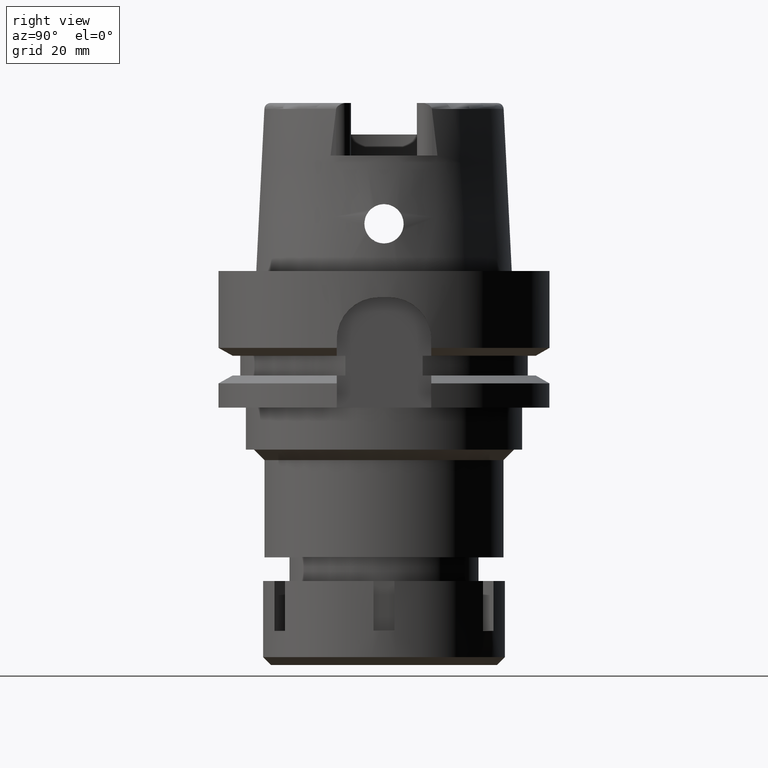
[diagram: clean part render]
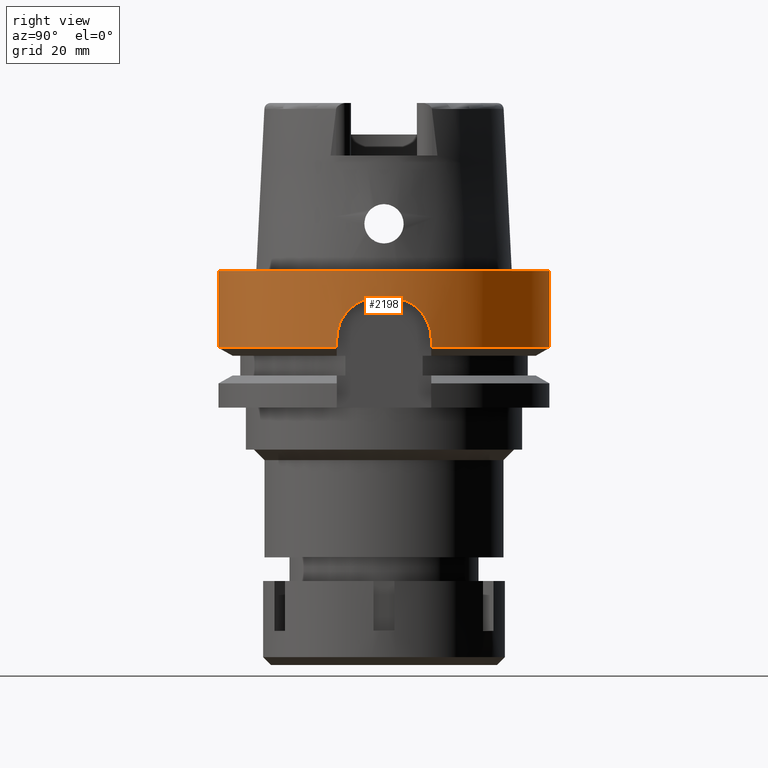
[diagram: same view with one face highlighted and labeled with its STEP entity id]
A machine part, right view. The second image highlights one B-rep face of the part: STEP entity #2198.
In plain terms, the highlighted cylindrical surface (partial cylindrical patch) has radius 31.5 mm, axis along (0, 0, 1).
Its self-contained STEP definition (entity closure, byte-faithful):
#54 = CARTESIAN_POINT ( 'NONE',  ( 30.51702131810234064, -7.809603249671924985, -8.791304907437334393 ) ) ;
#81 = CARTESIAN_POINT ( 'NONE',  ( 30.36389475051907283, -8.383544545715203355, -9.920471320936059101 ) ) ;
#107 = CARTESIAN_POINT ( 'NONE',  ( 30.41590887709456581, -8.193240148041644133, -9.496691640511109256 ) ) ;
#121 = CARTESIAN_POINT ( 'NONE',  ( 31.10351900522985957, 4.987045468982477914, -6.059272024111327148 ) ) ;
#134 = CARTESIAN_POINT ( 'NONE',  ( 30.39415701621588539, -8.273302781521842064, -9.667878307958662987 ) ) ;
#146 = EDGE_CURVE ( 'NONE', #2795, #435, #564, .T. ) ;
#151 = CARTESIAN_POINT ( 'NONE',  ( 31.19801897404636648, 4.351427353639776285, -5.735577851712073461 ) ) ;
#170 = CARTESIAN_POINT ( 'NONE',  ( 30.69497368320052288, -7.078897646005479771, -7.792717479204596565 ) ) ;
#183 = CARTESIAN_POINT ( 'NONE',  ( 30.38226979499732749, 8.317184729392344877, -9.757205934844604300 ) ) ;
#248 = CARTESIAN_POINT ( 'NONE',  ( 31.01660063787043953, 5.497298744674538717, -6.383775614452099845 ) ) ;
#330 = DIRECTION ( 'NONE',  ( 0.9583148474999051425, 0.2857142857143015191, 0.0000000000000000000 ) ) ;
#370 = CARTESIAN_POINT ( 'NONE',  ( 0.0000000000000000000, 31.50000000000000000, -1.042129345780999972E-13 ) ) ;
#371 = CARTESIAN_POINT ( 'NONE',  ( 31.48412298285999711, -1.000000000000000000, -5.000000000000000000 ) ) ;
#400 = CARTESIAN_POINT ( 'NONE',  ( 31.29498284434387756, -3.590644359524675089, -5.428944240270606514 ) ) ;
#435 = VERTEX_POINT ( 'NONE', #5395 ) ;
#521 = CARTESIAN_POINT ( 'NONE',  ( 31.06444629745790920, -5.220631158509295489, -6.203290350516115659 ) ) ;
#552 = CARTESIAN_POINT ( 'NONE',  ( 30.89620921175197665, -6.137412486659483690, -6.865390673085549622 ) ) ;
#555 = CIRCLE ( 'NONE', #1361, 31.49999999999999645 ) ;
#564 = LINE ( 'NONE', #2489, #5617 ) ;
#583 = CARTESIAN_POINT ( 'NONE',  ( 30.79357681694752813, -6.633677784657264098, -7.320051183288925678 ) ) ;
#593 = CARTESIAN_POINT ( 'NONE',  ( 30.74021165735640082, 6.877327897431877446, -7.571599291362645978 ) ) ;
#608 = CARTESIAN_POINT ( 'NONE',  ( 30.73952974355442080, -6.883893703069639436, -7.569694555210800146 ) ) ;
#629 = AXIS2_PLACEMENT_3D ( 'NONE', #796, #3765, #2245 ) ;
#635 = CIRCLE ( 'NONE', #5796, 31.50000000000000000 ) ;
#653 = CARTESIAN_POINT ( 'NONE',  ( 30.31073196050320462, 8.574603157634673067, -10.41989472781736659 ) ) ;
#687 = CARTESIAN_POINT ( 'NONE',  ( 30.95356917977947830, 5.840594664962170945, -6.629294821352991640 ) ) ;
#715 = CARTESIAN_POINT ( 'NONE',  ( 31.01215638590405632, 5.522259670439633616, -6.400779541551810503 ) ) ;
#758 = ORIENTED_EDGE ( 'NONE', *, *, #1532, .F. ) ;
#796 = CARTESIAN_POINT ( 'NONE',  ( 0.0000000000000000000, 0.0000000000000000000, -71.95000000000000284 ) ) ;
#820 = CARTESIAN_POINT ( 'NONE',  ( 31.23338604667608109, 4.089706211302964967, -5.620720255765226270 ) ) ;
#839 = CARTESIAN_POINT ( 'NONE',  ( 31.46862929428667499, -1.487805196524014661, -4.999999999999999112 ) ) ;
#850 = VECTOR ( 'NONE', #4786, 1000.000000000000000 ) ;
#995 = CARTESIAN_POINT ( 'NONE',  ( 30.63683066884467365, -7.324908374289424096, -8.099721332685088981 ) ) ;
#1021 = CARTESIAN_POINT ( 'NONE',  ( 31.18046083519910638, -4.480996307724982586, -5.792206243718687197 ) ) ;
#1049 = CARTESIAN_POINT ( 'NONE',  ( 31.24422726887665647, -4.006013280351468531, -5.586231854428084453 ) ) ;
#1081 = CARTESIAN_POINT ( 'NONE',  ( 30.85909880326832067, -6.321181662585879657, -7.025752317090677046 ) ) ;
#1092 = CARTESIAN_POINT ( 'NONE',  ( 30.57875992455571179, 7.563158154240367637, -8.421355729161382087 ) ) ;
#1106 = CARTESIAN_POINT ( 'NONE',  ( 30.80271848455124228, -6.591097070910298505, -7.278057713420767350 ) ) ;
#1125 = CARTESIAN_POINT ( 'NONE',  ( 30.41091297280572547, 8.212614273435303147, -9.529084935421849423 ) ) ;
#1161 = CARTESIAN_POINT ( 'NONE',  ( 30.78148409646215811, 6.689563132414347635, -7.376041391300625527 ) ) ;
#1193 = CARTESIAN_POINT ( 'NONE',  ( 30.55097295826762505, 7.673859706393864499, -8.588695640995739566 ) ) ;
#1303 = ORIENTED_EDGE ( 'NONE', *, *, #2155, .F. ) ;
#1361 = AXIS2_PLACEMENT_3D ( 'NONE', #2189, #4130, #330 ) ;
#1497 = CARTESIAN_POINT ( 'NONE',  ( 31.03248419704792127, -5.406936118259175750, -6.323244762925324558 ) ) ;
#1524 = CARTESIAN_POINT ( 'NONE',  ( 31.21214485125329574, -4.254475600982952521, -5.688145897417157038 ) ) ;
#1532 = EDGE_CURVE ( 'NONE', #435, #5927, #5894, .T. ) ;
#1556 = CARTESIAN_POINT ( 'NONE',  ( 30.18691769624998500, -8.999999999999998224, -12.01186829125632549 ) ) ;
#1571 = CARTESIAN_POINT ( 'NONE',  ( 30.47652907464237160, 7.965013030171157027, -9.062045400748701240 ) ) ;
#1600 = CARTESIAN_POINT ( 'NONE',  ( 31.22893199102224315, 4.123619458024327500, -5.634989324774632102 ) ) ;
#1629 = CARTESIAN_POINT ( 'NONE',  ( 30.54275586037433854, 7.706530796246862991, -8.638463306916211337 ) ) ;
#1664 = CARTESIAN_POINT ( 'NONE',  ( 30.97075242115173310, 5.748917096448772135, -6.561274545095370669 ) ) ;
#1696 = CARTESIAN_POINT ( 'NONE',  ( 30.76102064053208807, 6.783202762953602694, -7.472132158813488800 ) ) ;
#1737 = CARTESIAN_POINT ( 'NONE',  ( 30.18691769625000276, -9.000000000000000000, -13.00000000000000000 ) ) ;
#1764 = CARTESIAN_POINT ( 'NONE',  ( 31.23410034302229477, 4.084247727923102644, -5.618435648017858774 ) ) ;
#1798 = CARTESIAN_POINT ( 'NONE',  ( 31.43987018167979031, 2.003457346806868156, -5.045754772101198604 ) ) ;
#1804 = FACE_OUTER_BOUND ( 'NONE', #2180, .T. ) ;
#1860 = CARTESIAN_POINT ( 'NONE',  ( 31.48412298285999711, 1.000000000000000000, -5.000000000000000000 ) ) ;
#1878 = ORIENTED_EDGE ( 'NONE', *, *, #3974, .F. ) ;
#1961 = VERTEX_POINT ( 'NONE', #2671 ) ;
#1969 = CARTESIAN_POINT ( 'NONE',  ( 30.18691748922999807, 9.000000694375000165, -14.62249532487000003 ) ) ;
#1970 = CARTESIAN_POINT ( 'NONE',  ( 31.25435775326689836, -3.926300973150983253, -5.554274822752600649 ) ) ;
#1994 = CARTESIAN_POINT ( 'NONE',  ( 0.0000000000000000000, 0.0000000000000000000, -5.000000000000000000 ) ) ;
#1998 = CARTESIAN_POINT ( 'NONE',  ( 30.36253540610416479, -8.388468589249711727, -9.932292884648544984 ) ) ;
#2027 = CARTESIAN_POINT ( 'NONE',  ( 30.55793727350530276, -7.646078201515455142, -8.546948798749085086 ) ) ;
#2043 = CARTESIAN_POINT ( 'NONE',  ( 30.33325373079298615, 8.494007686403834967, -10.19860245585967107 ) ) ;
#2058 = CARTESIAN_POINT ( 'NONE',  ( 30.84611464479288756, -6.384576231397004697, -7.082713215559180320 ) ) ;
#2075 = CARTESIAN_POINT ( 'NONE',  ( 31.20965332894700595, 4.267577075393123920, -5.697307926940550438 ) ) ;
#2104 = CARTESIAN_POINT ( 'NONE',  ( 30.61169289301800589, 7.430571089701370369, -8.233868730760024235 ) ) ;
#2135 = CARTESIAN_POINT ( 'NONE',  ( 30.66945258665633034, 7.187077690273746100, -7.926822237655235526 ) ) ;
#2155 = EDGE_CURVE ( 'NONE', #4657, #5481, #6086, .T. ) ;
#2169 = CARTESIAN_POINT ( 'NONE',  ( 30.54892062510187500, 7.682030209189583125, -8.601080548245565893 ) ) ;
#2180 = EDGE_LOOP ( 'NONE', ( #2417, #2201, #6200, #4828, #4050, #1303, #1878, #2595, #758, #4964 ) ) ;
#2189 = CARTESIAN_POINT ( 'NONE',  ( 0.0000000000000000000, 0.0000000000000000000, -14.62250092523999889 ) ) ;
#2198 = ADVANCED_FACE ( 'NONE', ( #1804 ), #5733, .T. ) ;
#2201 = ORIENTED_EDGE ( 'NONE', *, *, #2709, .F. ) ;
#2204 = CARTESIAN_POINT ( 'NONE',  ( 31.30247231558967158, 3.560024777181639344, -5.400071092689555208 ) ) ;
#2245 = DIRECTION ( 'NONE',  ( 0.0000000000000000000, 1.000000000000000000, 0.0000000000000000000 ) ) ;
#2270 = CARTESIAN_POINT ( 'NONE',  ( 31.23160883853293512, 4.103259574858531877, -5.626409692226821413 ) ) ;
#2382 = CARTESIAN_POINT ( 'NONE',  ( 31.48412298285999711, -1.000000000000000000, -5.000000000000000000 ) ) ;
#2417 = ORIENTED_EDGE ( 'NONE', *, *, #4148, .T. ) ;
#2445 = CARTESIAN_POINT ( 'NONE',  ( 30.97797767624382814, -5.712930555598186189, -6.530284081001701324 ) ) ;
#2454 = AXIS2_PLACEMENT_3D ( 'NONE', #4749, #5673, #4689 ) ;
#2476 = CARTESIAN_POINT ( 'NONE',  ( 30.81528847964833773, -6.532081462895933832, -7.220736731616299586 ) ) ;
#2489 = CARTESIAN_POINT ( 'NONE',  ( 30.18691748922999807, 9.000000694375000165, -14.62249532487000003 ) ) ;
#2507 = CARTESIAN_POINT ( 'NONE',  ( 30.56333130518223129, -7.624499568643897440, -8.514882766993588703 ) ) ;
#2513 = DIRECTION ( 'NONE',  ( 0.0000000000000000000, -2.672583210396999878E-14, -1.000000000000000000 ) ) ;
#2519 = CARTESIAN_POINT ( 'NONE',  ( 30.77702742850593864, 6.710045828426033587, -7.396826342165702783 ) ) ;
#2533 = CARTESIAN_POINT ( 'NONE',  ( 31.02915295574652532, -5.426017707790920852, -6.335889218875755624 ) ) ;
#2546 = CARTESIAN_POINT ( 'NONE',  ( 30.34509707551434587, 8.451418350540729207, -10.08823578540926214 ) ) ;
#2562 = CARTESIAN_POINT ( 'NONE',  ( 30.37197361460182776, -8.354244319411078479, -9.850921280132384439 ) ) ;
#2584 = CARTESIAN_POINT ( 'NONE',  ( 30.53421250024674904, 7.740373360182518425, -8.690756953934961615 ) ) ;
#2595 = ORIENTED_EDGE ( 'NONE', *, *, #5568, .T. ) ;
#2642 = EDGE_CURVE ( 'NONE', #5292, #5481, #635, .T. ) ;
#2646 = CARTESIAN_POINT ( 'NONE',  ( 30.18691769625000276, 9.000000000000000000, -13.00000000000000000 ) ) ;
#2671 = CARTESIAN_POINT ( 'NONE',  ( 0.0000000000000000000, 31.50000000000000000, -14.62250092523999889 ) ) ;
#2709 = EDGE_CURVE ( 'NONE', #4401, #1961, #2768, .T. ) ;
#2768 = LINE ( 'NONE', #370, #850 ) ;
#2795 = VERTEX_POINT ( 'NONE', #1969 ) ;
#2891 = CARTESIAN_POINT ( 'NONE',  ( 31.44054951429223266, -1.991650082123031185, -5.044728192314773096 ) ) ;
#2916 = CARTESIAN_POINT ( 'NONE',  ( 0.0000000000000000000, 31.50000000000000000, -1.042129345780999972E-13 ) ) ;
#2949 = CARTESIAN_POINT ( 'NONE',  ( 31.12738314170660558, -4.831541341416409452, -5.975991352447832305 ) ) ;
#2960 = CIRCLE ( 'NONE', #2454, 31.50000000000000000 ) ;
#2982 = CARTESIAN_POINT ( 'NONE',  ( 30.56029974734076049, -7.636631297304871779, -8.532876597541045882 ) ) ;
#3008 = DIRECTION ( 'NONE',  ( 0.0000000000000000000, 0.0000000000000000000, 1.000000000000000000 ) ) ;
#3013 = CARTESIAN_POINT ( 'NONE',  ( 30.18691769625000276, -9.000000000000000000, -13.00000000000000000 ) ) ;
#3023 = CARTESIAN_POINT ( 'NONE',  ( 31.01974173833684745, 5.479564779210775782, -6.371764465647411946 ) ) ;
#3029 = EDGE_CURVE ( 'NONE', #4401, #3062, #2960, .T. ) ;
#3059 = CARTESIAN_POINT ( 'NONE',  ( 30.69009919135992703, 7.098461224688407789, -7.820207796570900705 ) ) ;
#3062 = VERTEX_POINT ( 'NONE', #5828 ) ;
#3073 = CARTESIAN_POINT ( 'NONE',  ( 30.18691774088000201, -8.999999850290000936, -14.62250213268999843 ) ) ;
#3098 = CARTESIAN_POINT ( 'NONE',  ( 30.84356742607224078, 6.403718140624154564, -7.087313524712353541 ) ) ;
#3126 = CARTESIAN_POINT ( 'NONE',  ( 30.89399094004739155, 6.150290345749212406, -6.872727026704084530 ) ) ;
#3429 = CARTESIAN_POINT ( 'NONE',  ( 30.58235241538057281, -7.548098287816991991, -8.403559537233402210 ) ) ;
#3458 = CARTESIAN_POINT ( 'NONE',  ( 31.02797328878387617, -5.432760836294759699, -6.340372944483992690 ) ) ;
#3490 = CARTESIAN_POINT ( 'NONE',  ( 31.24728577268394503, -3.982109684822604301, -5.576554793025469969 ) ) ;
#3502 = CARTESIAN_POINT ( 'NONE',  ( 30.26147252203688254, 8.748294982220949478, -10.99148821071494808 ) ) ;
#3530 = CARTESIAN_POINT ( 'NONE',  ( 31.02046544499615166, 5.475467038621507854, -6.368997379040503226 ) ) ;
#3561 = CARTESIAN_POINT ( 'NONE',  ( 30.72315915865154423, 6.953110386970252854, -7.655297401587237260 ) ) ;
#3598 = CARTESIAN_POINT ( 'NONE',  ( 30.99251302540244524, 5.630845769266631606, -6.476380051734281551 ) ) ;
#3627 = CARTESIAN_POINT ( 'NONE',  ( 31.06401895155574167, 5.228603676333536399, -6.202469535152678404 ) ) ;
#3670 = DIRECTION ( 'NONE',  ( 2.750962105278972151E-08, 9.227117406120917038E-08, -0.9999999999999953371 ) ) ;
#3760 = CARTESIAN_POINT ( 'NONE',  ( 31.46845282448078152, 1.493361193539801235, -4.999999999999995559 ) ) ;
#3765 = DIRECTION ( 'NONE',  ( 0.0000000000000000000, 0.0000000000000000000, 1.000000000000000000 ) ) ;
#3778 = CARTESIAN_POINT ( 'NONE',  ( 0.0000000000000000000, 0.0000000000000000000, -14.62250092523999889 ) ) ;
#3801 = VECTOR ( 'NONE', #2513, 1000.000000000000000 ) ;
#3817 = DIRECTION ( 'NONE',  ( 0.0000000000000000000, -1.000000000000000000, 0.0000000000000000000 ) ) ;
#3904 = VERTEX_POINT ( 'NONE', #371 ) ;
#3911 = CARTESIAN_POINT ( 'NONE',  ( 31.07945061752204907, -5.130140650886052534, -6.148226952572525050 ) ) ;
#3936 = CARTESIAN_POINT ( 'NONE',  ( 30.61889817675524483, -7.399162952918718617, -8.197521695379997198 ) ) ;
#3965 = CARTESIAN_POINT ( 'NONE',  ( 30.24485343558332673, -8.814384627829962682, -10.96434866691623178 ) ) ;
#3974 = EDGE_CURVE ( 'NONE', #3904, #4657, #4598, .T. ) ;
#3978 = CARTESIAN_POINT ( 'NONE',  ( 31.15711901422610808, 4.635971985087229186, -5.872779866917594127 ) ) ;
#3996 = CARTESIAN_POINT ( 'NONE',  ( 30.38363371071384833, -8.311826331245239174, -9.752881976969513644 ) ) ;
#4024 = DIRECTION ( 'NONE',  ( 0.9994959677099152229, -0.03174603174603050915, 0.0000000000000000000 ) ) ;
#4029 = CARTESIAN_POINT ( 'NONE',  ( 31.24218212078600487, -4.021945694684972317, -5.592711820354144159 ) ) ;
#4041 = CARTESIAN_POINT ( 'NONE',  ( 30.50356462214524456, 7.860470122828302486, -8.884338093594804420 ) ) ;
#4050 = ORIENTED_EDGE ( 'NONE', *, *, #2642, .T. ) ;
#4075 = CARTESIAN_POINT ( 'NONE',  ( 30.77165373245826885, 6.734678000848393964, -7.421991960932024845 ) ) ;
#4115 = CARTESIAN_POINT ( 'NONE',  ( 31.02017674636715583, 5.477102086179831630, -6.370101216241421227 ) ) ;
#4130 = DIRECTION ( 'NONE',  ( 0.0000000000000000000, 0.0000000000000000000, 1.000000000000000000 ) ) ;
#4148 = EDGE_CURVE ( 'NONE', #2795, #1961, #555, .T. ) ;
#4237 = CARTESIAN_POINT ( 'NONE',  ( 31.37955070716889239, -2.756818884311131423, -5.190965663885878101 ) ) ;
#4314 = CARTESIAN_POINT ( 'NONE',  ( 31.48412298285999711, 1.000000000000000000, -5.000000000000000000 ) ) ;
#4379 = CARTESIAN_POINT ( 'NONE',  ( 30.91849339481757397, -6.023486962973792380, -6.772495414980402195 ) ) ;
#4401 = VERTEX_POINT ( 'NONE', #2916 ) ;
#4411 = CARTESIAN_POINT ( 'NONE',  ( 30.56951324417223859, -7.599724633565291043, -8.478411585897246638 ) ) ;
#4437 = CARTESIAN_POINT ( 'NONE',  ( 30.43135045084655843, -8.135843912666324229, -9.380991867724592481 ) ) ;
#4450 = CARTESIAN_POINT ( 'NONE',  ( 31.02041416191320167, 5.475758040722031872, -6.369193465190950754 ) ) ;
#4466 = CARTESIAN_POINT ( 'NONE',  ( 30.59417220766484036, -7.500181271750584244, -8.336212427064108255 ) ) ;
#4472 = VECTOR ( 'NONE', #3670, 1000.000000000000000 ) ;
#4483 = CARTESIAN_POINT ( 'NONE',  ( 31.01871299899169543, 5.485381858684162282, -6.375697916687038003 ) ) ;
#4499 = CARTESIAN_POINT ( 'NONE',  ( 30.79724499690740913, -6.616616079194028721, -7.303179153182240313 ) ) ;
#4504 = LINE ( 'NONE', #4923, #3801 ) ;
#4517 = CARTESIAN_POINT ( 'NONE',  ( 30.35379236490578592, 8.420065879865989089, -10.00953018644961112 ) ) ;
#4547 = CARTESIAN_POINT ( 'NONE',  ( 30.29342459023126111, 8.635894425964945498, -10.61030022799528361 ) ) ;
#4580 = CARTESIAN_POINT ( 'NONE',  ( 30.45943090366488093, 8.030117878559376976, -9.179698097757285069 ) ) ;
#4598 = B_SPLINE_CURVE_WITH_KNOTS ( 'NONE', 3,
 ( #2382, #839, #2891, #4237, #6166, #5208, #400, #5891, #1970, #3490, #1049, #4029, #4881, #1524, #1021, #2949, #4851, #3911, #521, #4972, #5425, #1497, #4946, #2533, #5860, #3458, #5389, #2445, #4379, #552, #1081, #2058, #5451, #2476, #1106, #4499, #583, #5362, #608, #170, #995, #3936, #4466, #3429, #4411, #2507, #2982, #5928, #4917, #2027, #54, #5837, #4437, #107, #134, #3996, #2562, #5963, #81, #1998, #3965, #1556, #3013 ),
 .UNSPECIFIED., .F., .F.,
 ( 4, 2, 2, 1, 1, 1, 1, 2, 2, 2, 2, 1, 1, 1, 1, 1, 2, 2, 2, 2, 2, 1, 1, 2, 2, 2, 2, 1, 1, 1, 1, 2, 2, 2, 2, 1, 1, 2, 2, 4 ),
 ( 0.0000000000000000000, 0.1249999999999879263, 0.1874999999999819034, 0.2187499999999788225, 0.2343749999999772127, 0.2421874999999763800, 0.2460937499999760469, 0.2480468749999758526, 0.2499999999999756584, 0.3124999999999665823, 0.3437499999999620304, 0.3593749999999597544, 0.3671874999999586997, 0.3710937499999582001, 0.3730468749999579781, 0.3740234374999577560, 0.3745117187499576450, 0.3749999999999575895, 0.4374999999999569233, 0.4687499999999565348, 0.4843749999999564793, 0.4921874999999564793, 0.4960937499999564793, 0.4980468749999564793, 0.4999999999999564793, 0.5624999999999525935, 0.5937499999999503730, 0.6093749999999492628, 0.6171874999999487077, 0.6210937499999484857, 0.6230468749999483746, 0.6240234374999483746, 0.6249999999999483746, 0.6874999999999560352, 0.7187499999999598099, 0.7343749999999614753, 0.7421874999999622524, 0.7460937499999625855, 0.7499999999999628075, 1.000000000000000000 ),
 .UNSPECIFIED. ) ;
#4657 = VERTEX_POINT ( 'NONE', #6088 ) ;
#4689 = DIRECTION ( 'NONE',  ( 0.0000000000000000000, 1.000000000000000000, 0.0000000000000000000 ) ) ;
#4708 = AXIS2_PLACEMENT_3D ( 'NONE', #1994, #3008, #4024 ) ;
#4729 = DIRECTION ( 'NONE',  ( 0.0000000000000000000, 0.0000000000000000000, 1.000000000000000000 ) ) ;
#4749 = CARTESIAN_POINT ( 'NONE',  ( 0.0000000000000000000, 0.0000000000000000000, -1.705302565823999875E-13 ) ) ;
#4786 = DIRECTION ( 'NONE',  ( 0.0000000000000000000, 2.672583210396999878E-14, -1.000000000000000000 ) ) ;
#4828 = ORIENTED_EDGE ( 'NONE', *, *, #5226, .T. ) ;
#4835 = DIRECTION ( 'NONE',  ( 1.275955265449000282E-07, -4.279672440867001170E-07, 0.9999999999999003020 ) ) ;
#4851 = CARTESIAN_POINT ( 'NONE',  ( 31.10876529897390341, -4.950170274441741292, -6.041869679207137800 ) ) ;
#4881 = CARTESIAN_POINT ( 'NONE',  ( 31.24100222008896210, -4.031104250735791261, -5.596456216234076742 ) ) ;
#4917 = CARTESIAN_POINT ( 'NONE',  ( 30.55815839645663345, -7.645194113726220486, -8.545630841469311179 ) ) ;
#4923 = CARTESIAN_POINT ( 'NONE',  ( 0.0000000000000000000, -31.50000000000000000, -1.042129345780999972E-13 ) ) ;
#4929 = CARTESIAN_POINT ( 'NONE',  ( 30.54706550152115696, 7.689410370422463004, -8.612297982421658560 ) ) ;
#4946 = CARTESIAN_POINT ( 'NONE',  ( 31.03015375129439235, -5.420291892629742314, -6.332087560301284945 ) ) ;
#4958 = CARTESIAN_POINT ( 'NONE',  ( 31.17404400530569930, 4.520807888827590659, -5.815329539149779237 ) ) ;
#4964 = ORIENTED_EDGE ( 'NONE', *, *, #146, .F. ) ;
#4972 = CARTESIAN_POINT ( 'NONE',  ( 31.04633404354124337, -5.326931381546301303, -6.270960938567657905 ) ) ;
#4993 = CARTESIAN_POINT ( 'NONE',  ( 30.24372137303999963, 8.809644100083831475, -11.24610579631998597 ) ) ;
#5030 = CARTESIAN_POINT ( 'NONE',  ( 30.35576990984641910, 8.412926100644709138, -9.991886153364195167 ) ) ;
#5056 = CARTESIAN_POINT ( 'NONE',  ( 31.00797069040628529, 5.545573783909293120, -6.416827764511594090 ) ) ;
#5187 = CARTESIAN_POINT ( 'NONE',  ( 31.35687992723424600, 3.036790767323676477, -5.245747801202456095 ) ) ;
#5208 = CARTESIAN_POINT ( 'NONE',  ( 31.31613227647832431, -3.398232611326474029, -5.366758414163030899 ) ) ;
#5226 = EDGE_CURVE ( 'NONE', #3062, #5292, #4504, .T. ) ;
#5292 = VERTEX_POINT ( 'NONE', #5994 ) ;
#5362 = CARTESIAN_POINT ( 'NONE',  ( 30.79145329566471290, -6.643528581496221719, -7.329842062956307913 ) ) ;
#5389 = CARTESIAN_POINT ( 'NONE',  ( 31.00780950683393300, -5.547927228371396069, -6.417051933153561372 ) ) ;
#5395 = CARTESIAN_POINT ( 'NONE',  ( 30.18691769625000276, 9.000000000000000000, -13.00000000000000000 ) ) ;
#5425 = CARTESIAN_POINT ( 'NONE',  ( 31.03712611312244363, -5.380242748066683234, -6.305669876340817659 ) ) ;
#5436 = CARTESIAN_POINT ( 'NONE',  ( 30.51742946865584827, 7.806477524460330386, -8.795178453362742843 ) ) ;
#5451 = CARTESIAN_POINT ( 'NONE',  ( 30.82571737360840913, -6.482450016623102940, -7.173789581941770521 ) ) ;
#5481 = VERTEX_POINT ( 'NONE', #3073 ) ;
#5499 = CARTESIAN_POINT ( 'NONE',  ( 30.78088891500280866, 6.692300835628828715, -7.378813575616135267 ) ) ;
#5518 = CIRCLE ( 'NONE', #4708, 31.49999999999999289 ) ;
#5531 = CARTESIAN_POINT ( 'NONE',  ( 30.35029760744702187, 8.432672734367800516, -10.04100297548426290 ) ) ;
#5562 = CARTESIAN_POINT ( 'NONE',  ( 30.77934268754449576, 6.699409488814834113, -7.386021277223650650 ) ) ;
#5568 = EDGE_CURVE ( 'NONE', #3904, #5927, #5518, .T. ) ;
#5617 = VECTOR ( 'NONE', #4835, 1000.000000000000000 ) ;
#5673 = DIRECTION ( 'NONE',  ( 0.0000000000000000000, 0.0000000000000000000, -1.000000000000000000 ) ) ;
#5733 = CYLINDRICAL_SURFACE ( 'NONE', #629, 31.50000000000000000 ) ;
#5796 = AXIS2_PLACEMENT_3D ( 'NONE', #3778, #4729, #3817 ) ;
#5828 = CARTESIAN_POINT ( 'NONE',  ( 0.0000000000000000000, -31.50000000000000000, -1.705302565823999875E-13 ) ) ;
#5837 = CARTESIAN_POINT ( 'NONE',  ( 30.48049617160115332, -7.950574194787108695, -9.030179954656640362 ) ) ;
#5860 = CARTESIAN_POINT ( 'NONE',  ( 31.02848530691860063, -5.429835338760622854, -6.338426302723751071 ) ) ;
#5891 = CARTESIAN_POINT ( 'NONE',  ( 31.26824360122986590, -3.814558180038920554, -5.510911207127875855 ) ) ;
#5894 = B_SPLINE_CURVE_WITH_KNOTS ( 'NONE', 3,
 ( #2646, #5976, #5904, #4993, #3502, #4547, #653, #2043, #2546, #5531, #4517, #5030, #183, #1125, #4580, #1571, #4041, #5436, #2584, #1629, #4929, #2169, #6007, #1193, #1092, #2104, #2135, #3059, #3561, #593, #1696, #4075, #2519, #5562, #5499, #1161, #3098, #3126, #687, #1664, #3598, #6046, #5056, #715, #248, #4483, #3023, #4115, #3530, #4450, #3627, #121, #3978, #4958, #151, #2075, #5944, #1600, #2270, #820, #1764, #2204, #5187, #1798, #3760, #1860 ),
 .UNSPECIFIED., .F., .F.,
 ( 4, 2, 2, 1, 1, 1, 2, 2, 2, 2, 1, 1, 1, 1, 2, 2, 2, 2, 1, 1, 1, 1, 2, 2, 2, 2, 2, 1, 1, 1, 1, 2, 2, 2, 2, 1, 1, 1, 2, 2, 2, 4 ),
 ( 0.0000000000000000000, 0.1249999999999962252, 0.1874999999999943379, 0.2187499999999933109, 0.2343749999999929223, 0.2421874999999926725, 0.2460937499999925060, 0.2499999999999923395, 0.3124999999999913958, 0.3437499999999911737, 0.3593749999999912292, 0.3671874999999915068, 0.3710937499999917288, 0.3730468749999919509, 0.3740234374999920064, 0.3749999999999920064, 0.4374999999999761857, 0.4687499999999681921, 0.4843749999999641953, 0.4921874999999620304, 0.4960937499999609201, 0.4980468749999603095, 0.4990234374999599765, 0.4999999999999595879, 0.5624999999999290567, 0.5937499999999139577, 0.6093749999999061862, 0.6171874999999025224, 0.6210937499999007461, 0.6230468749999001910, 0.6240234374999000799, 0.6245117187499001910, 0.6249999999999003020, 0.6874999999999176215, 0.7187499999999263922, 0.7343749999999307221, 0.7421874999999329425, 0.7460937499999340528, 0.7480468749999346079, 0.7499999999999350520, 0.8749999999999675815, 1.000000000000000000 ),
 .UNSPECIFIED. ) ;
#5904 = CARTESIAN_POINT ( 'NONE',  ( 30.20111861544750198, 8.954925066855384586, -12.00706970465099488 ) ) ;
#5927 = VERTEX_POINT ( 'NONE', #4314 ) ;
#5928 = CARTESIAN_POINT ( 'NONE',  ( 30.55901323933447600, -7.641776213190593303, -8.540536114792876887 ) ) ;
#5944 = CARTESIAN_POINT ( 'NONE',  ( 31.22260876642582161, 4.171333157339458531, -5.655328994318588265 ) ) ;
#5963 = CARTESIAN_POINT ( 'NONE',  ( 30.36710866490530947, -8.371894216068728412, -9.892685627293161588 ) ) ;
#5976 = CARTESIAN_POINT ( 'NONE',  ( 30.18691769625000276, 9.000000000000005329, -12.51035540640077670 ) ) ;
#5994 = CARTESIAN_POINT ( 'NONE',  ( 0.0000000000000000000, -31.50000000000000000, -14.62250092523999889 ) ) ;
#6007 = CARTESIAN_POINT ( 'NONE',  ( 30.55015918182631296, 7.677100564657782122, -8.593601458220966549 ) ) ;
#6046 = CARTESIAN_POINT ( 'NONE',  ( 30.99909751718474737, 5.594720812557636869, -6.450944229667523011 ) ) ;
#6086 = LINE ( 'NONE', #1737, #4472 ) ;
#6088 = CARTESIAN_POINT ( 'NONE',  ( 30.18691769625000276, -9.000000000000000000, -13.00000000000000000 ) ) ;
#6166 = CARTESIAN_POINT ( 'NONE',  ( 31.35607124860584349, -3.013391128033248378, -5.252881617744594500 ) ) ;
#6200 = ORIENTED_EDGE ( 'NONE', *, *, #3029, .T. ) ;